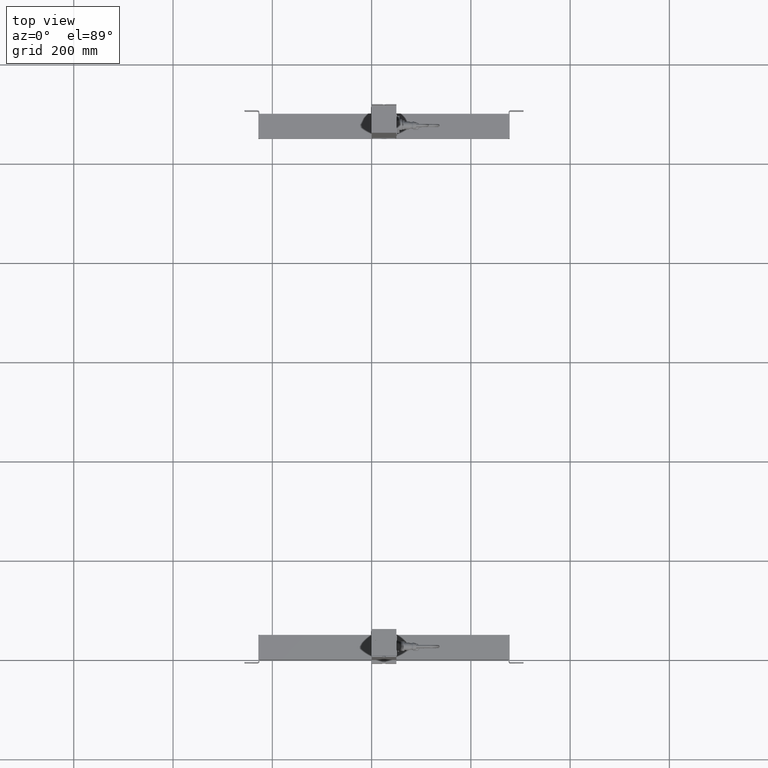
[diagram: clean part render]
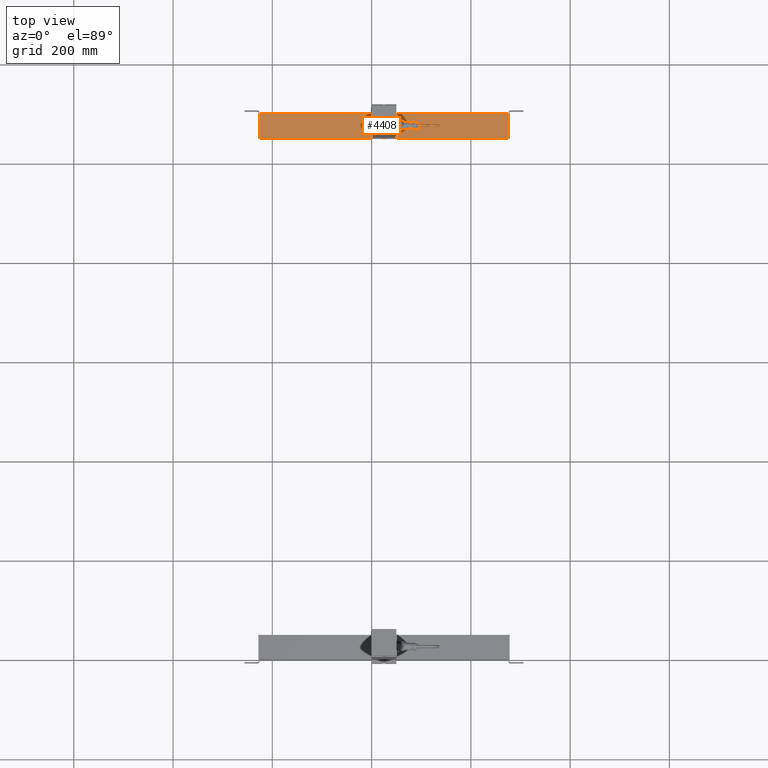
[diagram: same view with one face highlighted and labeled with its STEP entity id]
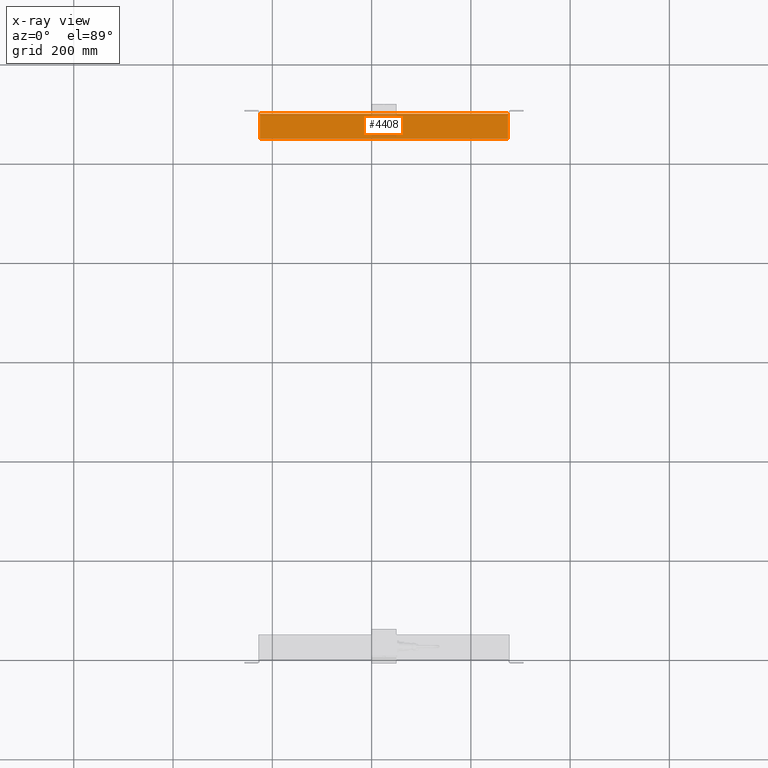
[diagram: x-ray of the same camera — body ghosted, the highlighted face saturated]
A machine part, top view. The second image highlights one B-rep face of the part: STEP entity #4408.
The next image is the same camera in x-ray: the body ghosted, the highlighted face saturated — about 10% of this face is hidden behind the body in this view.
In plain terms, the highlighted planar face has unit normal (-0, 0, 1).
Its self-contained STEP definition (entity closure, byte-faithful):
#4171=CARTESIAN_POINT('Line Origine',(0.,25.,0.)) ;
#4175=CARTESIAN_POINT('Vertex',(9.32587340685E-015,50.,0.)) ;
#4177=CARTESIAN_POINT('Vertex',(0.,0.,0.)) ;
#4272=CARTESIAN_POINT('Vertex',(0.,27.5,267.44)) ;
#4275=CARTESIAN_POINT('Axis2P3D Location',(0.,25.,267.44)) ;
#4279=CARTESIAN_POINT('Vertex',(0.,22.5,267.44)) ;
#4301=CARTESIAN_POINT('Axis2P3D Location',(0.,25.,267.44)) ;
#4324=CARTESIAN_POINT('Vertex',(0.,27.4348620305,232.56)) ;
#4327=CARTESIAN_POINT('Axis2P3D Location',(0.,25.,232.56)) ;
#4331=CARTESIAN_POINT('Vertex',(0.,22.5651379695,232.56)) ;
#4353=CARTESIAN_POINT('Axis2P3D Location',(0.,25.,232.56)) ;
#4370=CARTESIAN_POINT('Axis2P3D Location',(0.,50.,0.)) ;
#4375=CARTESIAN_POINT('Line Origine',(0.,50.,250.)) ;
#4379=CARTESIAN_POINT('Vertex',(9.32587340685E-015,50.,500.)) ;
#4382=CARTESIAN_POINT('Line Origine',(0.,0.,250.)) ;
#4386=CARTESIAN_POINT('Vertex',(0.,0.,500.)) ;
#4389=CARTESIAN_POINT('Line Origine',(0.,25.,500.)) ;
#4172=DIRECTION('Vector Direction',(0.,-1.,0.)) ;
#4276=DIRECTION('Axis2P3D Direction',(1.,0.,0.)) ;
#4302=DIRECTION('Axis2P3D Direction',(1.,0.,0.)) ;
#4328=DIRECTION('Axis2P3D Direction',(1.,0.,0.)) ;
#4354=DIRECTION('Axis2P3D Direction',(1.,0.,0.)) ;
#4371=DIRECTION('Axis2P3D Direction',(-1.,0.,0.)) ;
#4372=DIRECTION('Axis2P3D XDirection',(0.,-1.,0.)) ;
#4376=DIRECTION('Vector Direction',(0.,0.,1.)) ;
#4383=DIRECTION('Vector Direction',(0.,0.,1.)) ;
#4390=DIRECTION('Vector Direction',(0.,-1.,0.)) ;
#4277=AXIS2_PLACEMENT_3D('Circle Axis2P3D',#4275,#4276,$) ;
#4303=AXIS2_PLACEMENT_3D('Circle Axis2P3D',#4301,#4302,$) ;
#4329=AXIS2_PLACEMENT_3D('Circle Axis2P3D',#4327,#4328,$) ;
#4355=AXIS2_PLACEMENT_3D('Circle Axis2P3D',#4353,#4354,$) ;
#4373=AXIS2_PLACEMENT_3D('Plane Axis2P3D',#4370,#4371,#4372) ;
#4395=ORIENTED_EDGE('',*,*,#4381,.F.) ;
#4396=ORIENTED_EDGE('',*,*,#4179,.T.) ;
#4397=ORIENTED_EDGE('',*,*,#4388,.T.) ;
#4398=ORIENTED_EDGE('',*,*,#4393,.F.) ;
#4401=ORIENTED_EDGE('',*,*,#4357,.F.) ;
#4402=ORIENTED_EDGE('',*,*,#4333,.F.) ;
#4405=ORIENTED_EDGE('',*,*,#4305,.F.) ;
#4406=ORIENTED_EDGE('',*,*,#4281,.F.) ;
#4403=FACE_BOUND('',#4400,.T.) ;
#4407=FACE_BOUND('',#4404,.T.) ;
#4173=VECTOR('Line Direction',#4172,1.) ;
#4377=VECTOR('Line Direction',#4376,1.) ;
#4384=VECTOR('Line Direction',#4383,1.) ;
#4391=VECTOR('Line Direction',#4390,1.) ;
#4408=ADVANCED_FACE('PartBody',(#4399,#4403,#4407),#4374,.T.) ;
#4278=CIRCLE('generated circle',#4277,2.50000000001) ;
#4304=CIRCLE('generated circle',#4303,2.50000000001) ;
#4330=CIRCLE('generated circle',#4329,2.4348620305) ;
#4356=CIRCLE('generated circle',#4355,2.4348620305) ;
#4179=EDGE_CURVE('',#4176,#4178,#4174,.T.) ;
#4281=EDGE_CURVE('',#4273,#4280,#4278,.F.) ;
#4305=EDGE_CURVE('',#4280,#4273,#4304,.F.) ;
#4333=EDGE_CURVE('',#4325,#4332,#4330,.F.) ;
#4357=EDGE_CURVE('',#4332,#4325,#4356,.F.) ;
#4381=EDGE_CURVE('',#4176,#4380,#4378,.T.) ;
#4388=EDGE_CURVE('',#4178,#4387,#4385,.T.) ;
#4393=EDGE_CURVE('',#4380,#4387,#4392,.T.) ;
#4394=EDGE_LOOP('',(#4395,#4396,#4397,#4398)) ;
#4400=EDGE_LOOP('',(#4401,#4402)) ;
#4404=EDGE_LOOP('',(#4405,#4406)) ;
#4399=FACE_OUTER_BOUND('',#4394,.T.) ;
#4174=LINE('Line',#4171,#4173) ;
#4378=LINE('Line',#4375,#4377) ;
#4385=LINE('Line',#4382,#4384) ;
#4392=LINE('Line',#4389,#4391) ;
#4374=PLANE('Plane',#4373) ;
#4176=VERTEX_POINT('',#4175) ;
#4178=VERTEX_POINT('',#4177) ;
#4273=VERTEX_POINT('',#4272) ;
#4280=VERTEX_POINT('',#4279) ;
#4325=VERTEX_POINT('',#4324) ;
#4332=VERTEX_POINT('',#4331) ;
#4380=VERTEX_POINT('',#4379) ;
#4387=VERTEX_POINT('',#4386) ;